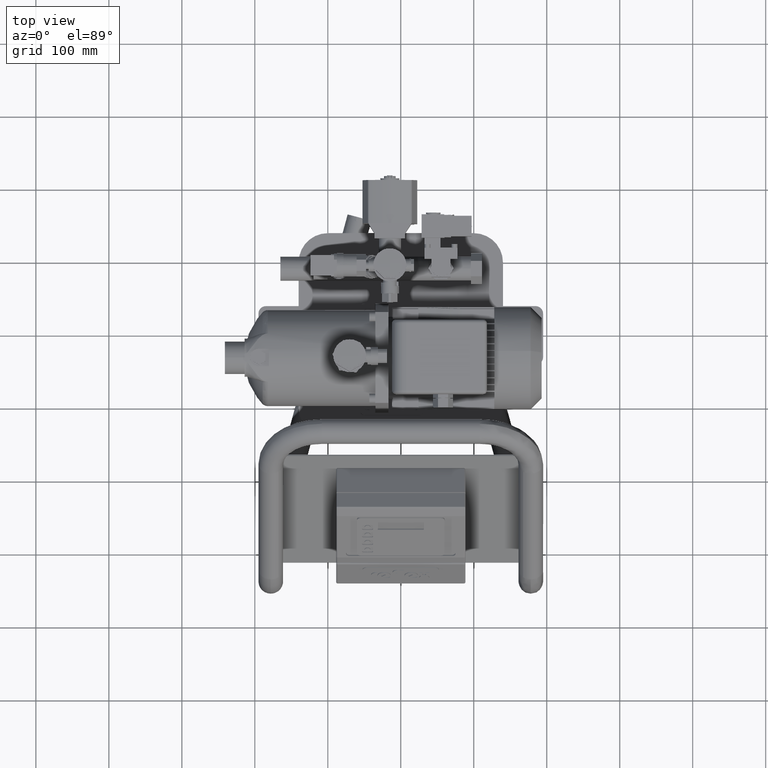
[diagram: clean part render]
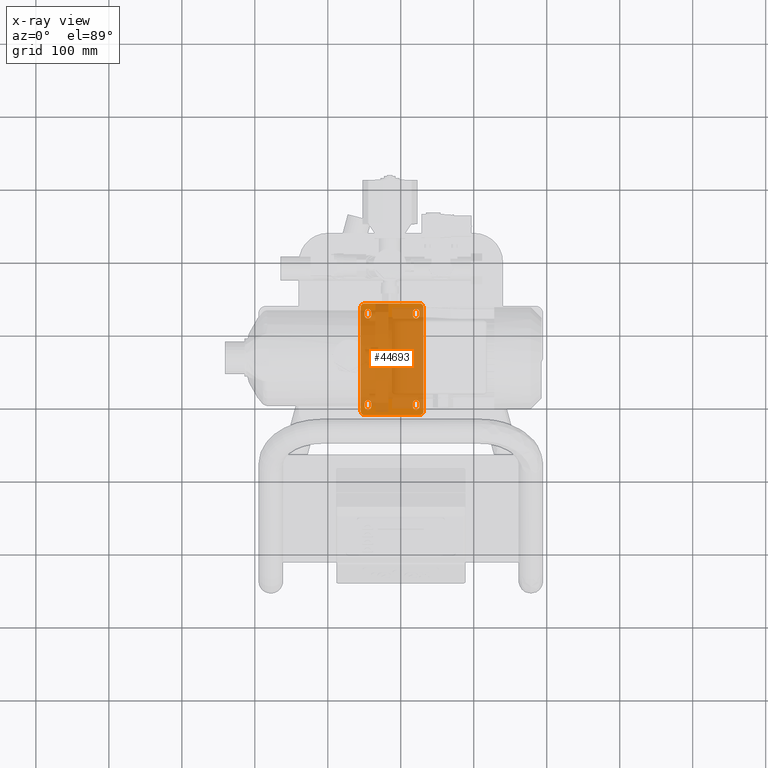
[diagram: x-ray — body ghosted, one internal face saturated and labeled with its STEP entity id]
A machine part, top view, then the same camera in x-ray: the body is ghosted and one INTERNAL B-rep face — a face not visible from any outside direction — is saturated and labeled: STEP entity #44693.
In plain terms, the highlighted planar face has unit normal (0, 0, 1).
Its self-contained STEP definition (entity closure, byte-faithful):
#43964=CARTESIAN_POINT('',(-55.000000000000142,-104.500000000000000,53.000000000000014));
#43965=VERTEX_POINT('',#43964);
#43966=CARTESIAN_POINT('',(-55.000000000000149,38.500000000000028,53.000000000000014));
#43967=VERTEX_POINT('',#43966);
#43968=CARTESIAN_POINT('',(-55.000000000000142,-104.500000000000000,53.000000000000014));
#43969=DIRECTION('',(0.0,1.0,0.0));
#43970=VECTOR('',#43969,143.000000000000030);
#43971=LINE('',#43968,#43970);
#43972=EDGE_CURVE('',#43965,#43967,#43971,.T.);
#44004=CARTESIAN_POINT('',(-50.000000000000128,-109.500000000000000,53.000000000000014));
#44005=VERTEX_POINT('',#44004);
#44006=CARTESIAN_POINT('',(-50.000000000000142,-104.500000000000000,53.000000000000021));
#44007=DIRECTION('',(-6.123032E-017,-6.123032E-017,-1.000000000000000));
#44008=DIRECTION('',(-0.707106781186547,-0.707106781186548,8.659275E-017));
#44009=AXIS2_PLACEMENT_3D('',#44006,#44007,#44008);
#44010=CIRCLE('',#44009,4.999999999999999);
#44011=EDGE_CURVE('',#44005,#43965,#44010,.T.);
#44037=CARTESIAN_POINT('',(-49.500000000000128,27.499999999999986,53.000000000000014));
#44038=VERTEX_POINT('',#44037);
#44039=CARTESIAN_POINT('',(-40.500000000000128,27.499999999999986,53.000000000000014));
#44040=VERTEX_POINT('',#44039);
#44041=CARTESIAN_POINT('',(-45.000000000000142,27.499999999999986,53.000000000000007));
#44042=DIRECTION('',(0.0,0.0,1.0));
#44043=DIRECTION('',(-1.0,0.0,0.0));
#44044=AXIS2_PLACEMENT_3D('',#44041,#44042,#44043);
#44045=CIRCLE('',#44044,4.500000000000000);
#44046=EDGE_CURVE('',#44038,#44040,#44045,.T.);
#44079=CARTESIAN_POINT('',(-49.500000000000128,31.500000000000028,53.000000000000014));
#44080=VERTEX_POINT('',#44079);
#44081=CARTESIAN_POINT('',(-49.500000000000128,31.500000000000028,53.000000000000014));
#44082=DIRECTION('',(0.0,-1.0,0.0));
#44083=VECTOR('',#44082,4.000000000000043);
#44084=LINE('',#44081,#44083);
#44085=EDGE_CURVE('',#44080,#44038,#44084,.T.);
#44110=CARTESIAN_POINT('',(-40.500000000000114,-97.500000000000000,53.000000000000014));
#44111=VERTEX_POINT('',#44110);
#44112=CARTESIAN_POINT('',(-40.500000000000114,-93.500000000000000,53.000000000000014));
#44113=VERTEX_POINT('',#44112);
#44114=CARTESIAN_POINT('',(-40.500000000000114,-97.500000000000000,53.000000000000014));
#44115=DIRECTION('',(0.0,1.0,0.0));
#44116=VECTOR('',#44115,4.0);
#44117=LINE('',#44114,#44116);
#44118=EDGE_CURVE('',#44111,#44113,#44117,.T.);
#44171=CARTESIAN_POINT('',(-49.500000000000128,-97.500000000000000,53.000000000000014));
#44172=VERTEX_POINT('',#44171);
#44173=CARTESIAN_POINT('',(-45.000000000000114,-97.500000000000000,53.000000000000021));
#44174=DIRECTION('',(0.0,0.0,1.0));
#44175=DIRECTION('',(1.0,0.0,0.0));
#44176=AXIS2_PLACEMENT_3D('',#44173,#44174,#44175);
#44177=CIRCLE('',#44176,4.500000000000000);
#44178=EDGE_CURVE('',#44172,#44111,#44177,.T.);
#44204=CARTESIAN_POINT('',(-50.000000000000149,43.500000000000028,53.000000000000014));
#44205=VERTEX_POINT('',#44204);
#44206=CARTESIAN_POINT('',(-50.000000000000149,38.500000000000028,53.000000000000007));
#44207=DIRECTION('',(6.123032E-017,-6.123032E-017,-1.000000000000000));
#44208=DIRECTION('',(-0.707106781186548,0.707106781186547,-8.659275E-017));
#44209=AXIS2_PLACEMENT_3D('',#44206,#44207,#44208);
#44210=CIRCLE('',#44209,4.999999999999999);
#44211=EDGE_CURVE('',#43967,#44205,#44210,.T.);
#44237=CARTESIAN_POINT('',(-49.500000000000128,-93.500000000000000,53.000000000000014));
#44238=VERTEX_POINT('',#44237);
#44239=CARTESIAN_POINT('',(-49.500000000000128,-93.500000000000000,53.000000000000014));
#44240=DIRECTION('',(0.0,-1.0,0.0));
#44241=VECTOR('',#44240,4.0);
#44242=LINE('',#44239,#44241);
#44243=EDGE_CURVE('',#44238,#44172,#44242,.T.);
#44268=CARTESIAN_POINT('',(-40.500000000000128,31.500000000000028,53.000000000000014));
#44269=VERTEX_POINT('',#44268);
#44270=CARTESIAN_POINT('',(-45.000000000000128,31.500000000000028,53.000000000000007));
#44271=DIRECTION('',(0.0,0.0,1.0));
#44272=DIRECTION('',(1.0,0.0,0.0));
#44273=AXIS2_PLACEMENT_3D('',#44270,#44271,#44272);
#44274=CIRCLE('',#44273,4.500000000000000);
#44275=EDGE_CURVE('',#44269,#44080,#44274,.T.);
#44301=CARTESIAN_POINT('',(-40.500000000000128,27.499999999999986,53.000000000000014));
#44302=DIRECTION('',(0.0,1.0,0.0));
#44303=VECTOR('',#44302,4.000000000000043);
#44304=LINE('',#44301,#44303);
#44305=EDGE_CURVE('',#44040,#44269,#44304,.T.);
#44442=CARTESIAN_POINT('',(-45.000000000000128,-93.500000000000000,53.000000000000021));
#44443=DIRECTION('',(0.0,0.0,1.0));
#44444=DIRECTION('',(-1.0,0.0,0.0));
#44445=AXIS2_PLACEMENT_3D('',#44442,#44443,#44444);
#44446=CIRCLE('',#44445,4.500000000000000);
#44447=EDGE_CURVE('',#44113,#44238,#44446,.T.);
#44559=CARTESIAN_POINT('',(2.999999999999957,-32.999999999999986,53.000000000000014));
#44560=DIRECTION('',(0.0,0.0,1.0));
#44561=DIRECTION('',(1.0,0.0,0.0));
#44562=AXIS2_PLACEMENT_3D('',#44559,#44560,#44561);
#44563=PLANE('',#44562);
#44564=CARTESIAN_POINT('',(30.999999999999957,38.500000000000043,53.000000000000014));
#44565=VERTEX_POINT('',#44564);
#44566=CARTESIAN_POINT('',(30.999999999999957,-104.500000000000010,53.000000000000014));
#44567=VERTEX_POINT('',#44566);
#44568=CARTESIAN_POINT('',(30.999999999999957,38.500000000000043,53.000000000000014));
#44569=DIRECTION('',(0.0,-1.0,0.0));
#44570=VECTOR('',#44569,143.000000000000060);
#44571=LINE('',#44568,#44570);
#44572=EDGE_CURVE('',#44565,#44567,#44571,.T.);
#44573=ORIENTED_EDGE('',*,*,#44572,.T.);
#44574=CARTESIAN_POINT('',(25.999999999999957,-109.500000000000010,53.000000000000014));
#44575=VERTEX_POINT('',#44574);
#44576=CARTESIAN_POINT('',(25.999999999999957,-104.500000000000010,53.000000000000021));
#44577=DIRECTION('',(6.123032E-017,-6.123032E-017,-1.000000000000000));
#44578=DIRECTION('',(0.707106781186548,-0.707106781186547,8.659275E-017));
#44579=AXIS2_PLACEMENT_3D('',#44576,#44577,#44578);
#44580=CIRCLE('',#44579,4.999999999999999);
#44581=EDGE_CURVE('',#44567,#44575,#44580,.T.);
#44582=ORIENTED_EDGE('',*,*,#44581,.T.);
#44583=CARTESIAN_POINT('',(25.999999999999957,-109.500000000000010,53.000000000000014));
#44584=DIRECTION('',(-1.0,0.0,0.0));
#44585=VECTOR('',#44584,76.000000000000085);
#44586=LINE('',#44583,#44585);
#44587=EDGE_CURVE('',#44575,#44005,#44586,.T.);
#44588=ORIENTED_EDGE('',*,*,#44587,.T.);
#44589=ORIENTED_EDGE('',*,*,#44011,.T.);
#44590=ORIENTED_EDGE('',*,*,#43972,.T.);
#44591=ORIENTED_EDGE('',*,*,#44211,.T.);
#44592=CARTESIAN_POINT('',(25.999999999999957,43.500000000000043,53.000000000000014));
#44593=VERTEX_POINT('',#44592);
#44594=CARTESIAN_POINT('',(-50.000000000000149,43.500000000000028,53.000000000000014));
#44595=DIRECTION('',(1.0,0.0,0.0));
#44596=VECTOR('',#44595,76.000000000000114);
#44597=LINE('',#44594,#44596);
#44598=EDGE_CURVE('',#44205,#44593,#44597,.T.);
#44599=ORIENTED_EDGE('',*,*,#44598,.T.);
#44600=CARTESIAN_POINT('',(25.999999999999957,38.500000000000043,53.000000000000007));
#44601=DIRECTION('',(-6.123032E-017,-6.123032E-017,-1.000000000000000));
#44602=DIRECTION('',(0.707106781186547,0.707106781186548,-8.659275E-017));
#44603=AXIS2_PLACEMENT_3D('',#44600,#44601,#44602);
#44604=CIRCLE('',#44603,4.999999999999999);
#44605=EDGE_CURVE('',#44593,#44565,#44604,.T.);
#44606=ORIENTED_EDGE('',*,*,#44605,.T.);
#44607=EDGE_LOOP('',(#44573,#44582,#44588,#44589,#44590,#44591,#44599,#44606));
#44608=FACE_OUTER_BOUND('',#44607,.T.);
#44609=ORIENTED_EDGE('',*,*,#44178,.T.);
#44610=ORIENTED_EDGE('',*,*,#44118,.T.);
#44611=ORIENTED_EDGE('',*,*,#44447,.T.);
#44612=ORIENTED_EDGE('',*,*,#44243,.T.);
#44613=EDGE_LOOP('',(#44609,#44610,#44611,#44612));
#44614=FACE_BOUND('',#44613,.T.);
#44615=ORIENTED_EDGE('',*,*,#44085,.T.);
#44616=ORIENTED_EDGE('',*,*,#44046,.T.);
#44617=ORIENTED_EDGE('',*,*,#44305,.T.);
#44618=ORIENTED_EDGE('',*,*,#44275,.T.);
#44619=EDGE_LOOP('',(#44615,#44616,#44617,#44618));
#44620=FACE_BOUND('',#44619,.T.);
#44621=CARTESIAN_POINT('',(16.499999999999957,31.500000000000014,53.000000000000014));
#44622=VERTEX_POINT('',#44621);
#44623=CARTESIAN_POINT('',(16.499999999999957,27.500000000000014,53.000000000000014));
#44624=VERTEX_POINT('',#44623);
#44625=CARTESIAN_POINT('',(16.499999999999957,31.500000000000014,53.000000000000014));
#44626=DIRECTION('',(0.0,-1.0,0.0));
#44627=VECTOR('',#44626,4.0);
#44628=LINE('',#44625,#44627);
#44629=EDGE_CURVE('',#44622,#44624,#44628,.T.);
#44630=ORIENTED_EDGE('',*,*,#44629,.T.);
#44631=CARTESIAN_POINT('',(25.499999999999957,27.500000000000014,53.000000000000014));
#44632=VERTEX_POINT('',#44631);
#44633=CARTESIAN_POINT('',(20.999999999999957,27.500000000000014,53.000000000000007));
#44634=DIRECTION('',(0.0,0.0,1.0));
#44635=DIRECTION('',(1.0,0.0,0.0));
#44636=AXIS2_PLACEMENT_3D('',#44633,#44634,#44635);
#44637=CIRCLE('',#44636,4.500000000000000);
#44638=EDGE_CURVE('',#44624,#44632,#44637,.T.);
#44639=ORIENTED_EDGE('',*,*,#44638,.T.);
#44640=CARTESIAN_POINT('',(25.499999999999957,31.500000000000014,53.000000000000014));
#44641=VERTEX_POINT('',#44640);
#44642=CARTESIAN_POINT('',(25.499999999999957,27.500000000000014,53.000000000000014));
#44643=DIRECTION('',(0.0,1.0,0.0));
#44644=VECTOR('',#44643,4.0);
#44645=LINE('',#44642,#44644);
#44646=EDGE_CURVE('',#44632,#44641,#44645,.T.);
#44647=ORIENTED_EDGE('',*,*,#44646,.T.);
#44648=CARTESIAN_POINT('',(20.999999999999957,31.500000000000014,53.000000000000007));
#44649=DIRECTION('',(0.0,0.0,1.0));
#44650=DIRECTION('',(-1.0,0.0,0.0));
#44651=AXIS2_PLACEMENT_3D('',#44648,#44649,#44650);
#44652=CIRCLE('',#44651,4.500000000000000);
#44653=EDGE_CURVE('',#44641,#44622,#44652,.T.);
#44654=ORIENTED_EDGE('',*,*,#44653,.T.);
#44655=EDGE_LOOP('',(#44630,#44639,#44647,#44654));
#44656=FACE_BOUND('',#44655,.T.);
#44657=CARTESIAN_POINT('',(25.499999999999957,-97.499999999999986,53.000000000000014));
#44658=VERTEX_POINT('',#44657);
#44659=CARTESIAN_POINT('',(25.499999999999957,-93.499999999999986,53.000000000000014));
#44660=VERTEX_POINT('',#44659);
#44661=CARTESIAN_POINT('',(25.499999999999957,-97.499999999999986,53.000000000000014));
#44662=DIRECTION('',(0.0,1.0,0.0));
#44663=VECTOR('',#44662,4.0);
#44664=LINE('',#44661,#44663);
#44665=EDGE_CURVE('',#44658,#44660,#44664,.T.);
#44666=ORIENTED_EDGE('',*,*,#44665,.T.);
#44667=CARTESIAN_POINT('',(16.499999999999957,-93.499999999999986,53.000000000000014));
#44668=VERTEX_POINT('',#44667);
#44669=CARTESIAN_POINT('',(20.999999999999972,-93.499999999999986,53.000000000000021));
#44670=DIRECTION('',(0.0,0.0,1.0));
#44671=DIRECTION('',(1.0,0.0,0.0));
#44672=AXIS2_PLACEMENT_3D('',#44669,#44670,#44671);
#44673=CIRCLE('',#44672,4.500000000000000);
#44674=EDGE_CURVE('',#44660,#44668,#44673,.T.);
#44675=ORIENTED_EDGE('',*,*,#44674,.T.);
#44676=CARTESIAN_POINT('',(16.499999999999957,-97.499999999999986,53.000000000000014));
#44677=VERTEX_POINT('',#44676);
#44678=CARTESIAN_POINT('',(16.499999999999957,-93.499999999999986,53.000000000000014));
#44679=DIRECTION('',(0.0,-1.0,0.0));
#44680=VECTOR('',#44679,4.0);
#44681=LINE('',#44678,#44680);
#44682=EDGE_CURVE('',#44668,#44677,#44681,.T.);
#44683=ORIENTED_EDGE('',*,*,#44682,.T.);
#44684=CARTESIAN_POINT('',(20.999999999999957,-97.499999999999986,53.000000000000021));
#44685=DIRECTION('',(0.0,0.0,1.0));
#44686=DIRECTION('',(-1.0,0.0,0.0));
#44687=AXIS2_PLACEMENT_3D('',#44684,#44685,#44686);
#44688=CIRCLE('',#44687,4.500000000000000);
#44689=EDGE_CURVE('',#44677,#44658,#44688,.T.);
#44690=ORIENTED_EDGE('',*,*,#44689,.T.);
#44691=EDGE_LOOP('',(#44666,#44675,#44683,#44690));
#44692=FACE_BOUND('',#44691,.T.);
#44693=ADVANCED_FACE('',(#44608,#44614,#44620,#44656,#44692),#44563,.F.);